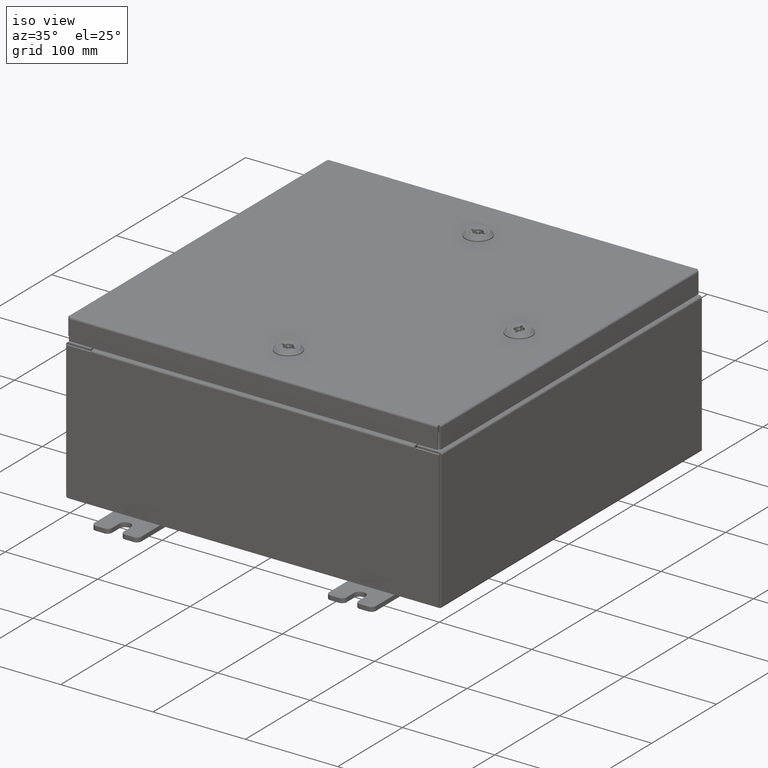
[diagram: clean part render]
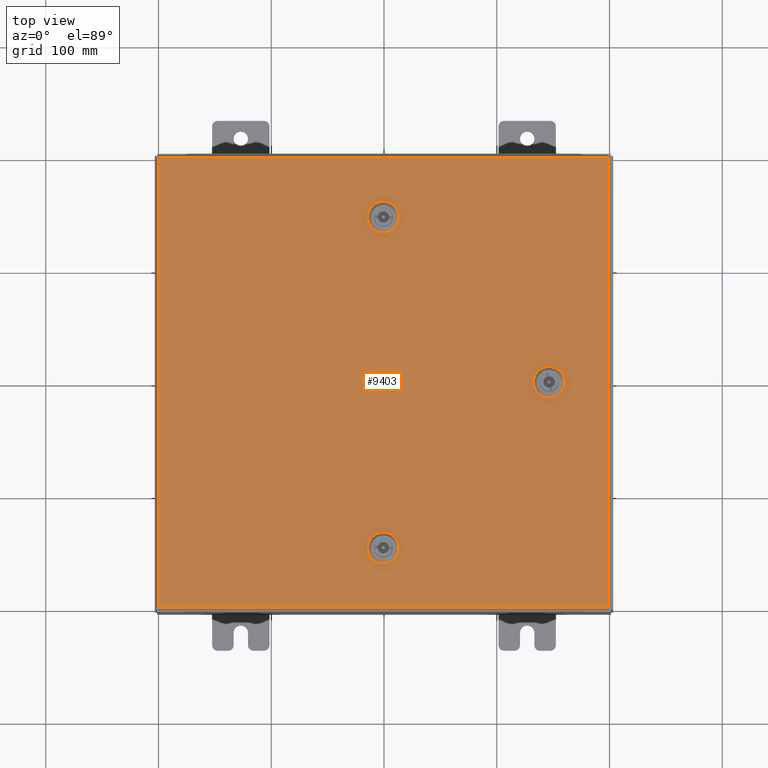
[diagram: tour spotlight — one face highlighted and labeled with its STEP entity id]
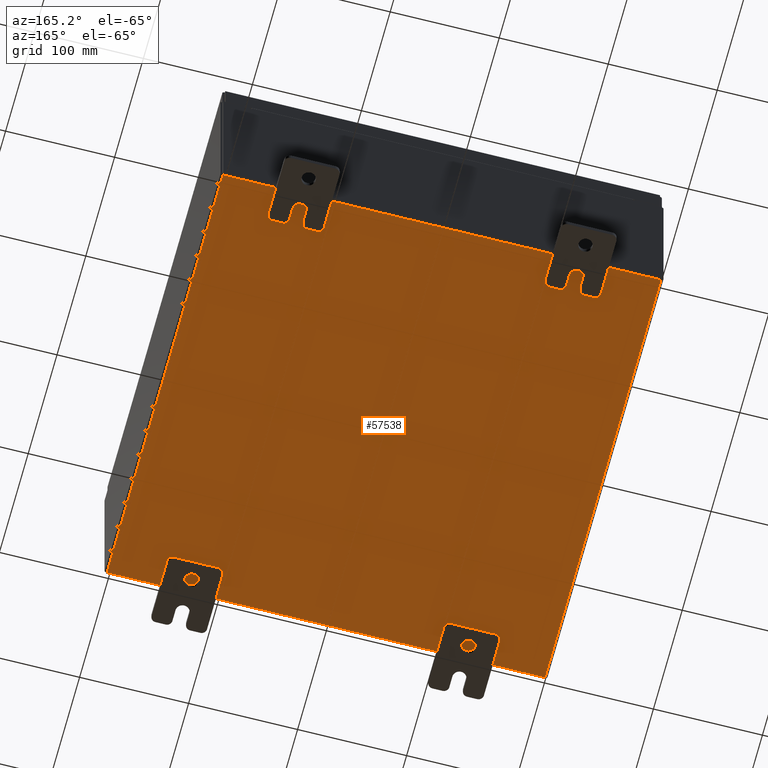
[diagram: tour spotlight — one face highlighted and labeled with its STEP entity id]
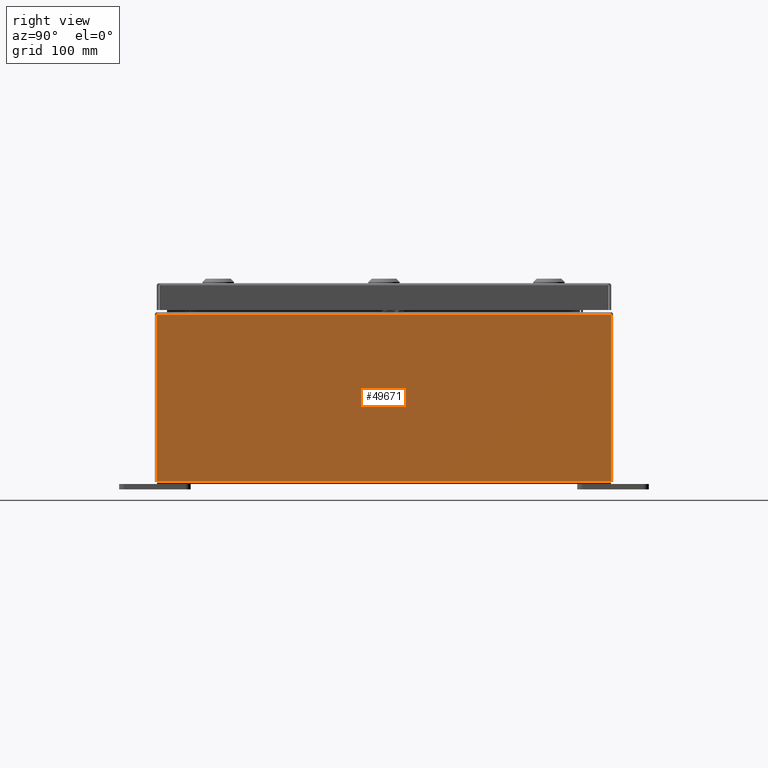
[diagram: tour spotlight — one face highlighted and labeled with its STEP entity id]
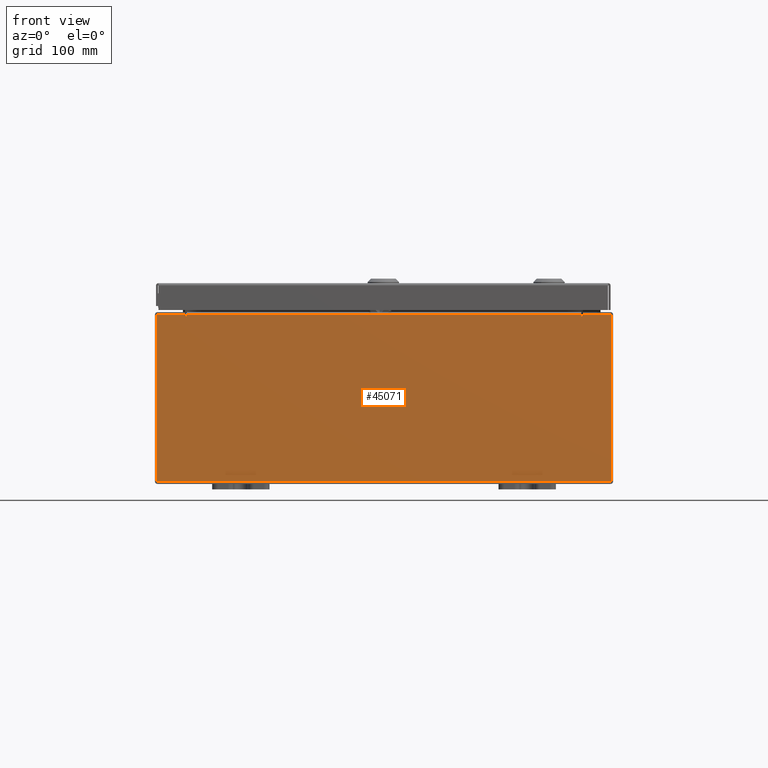
[diagram: tour spotlight — one face highlighted and labeled with its STEP entity id]
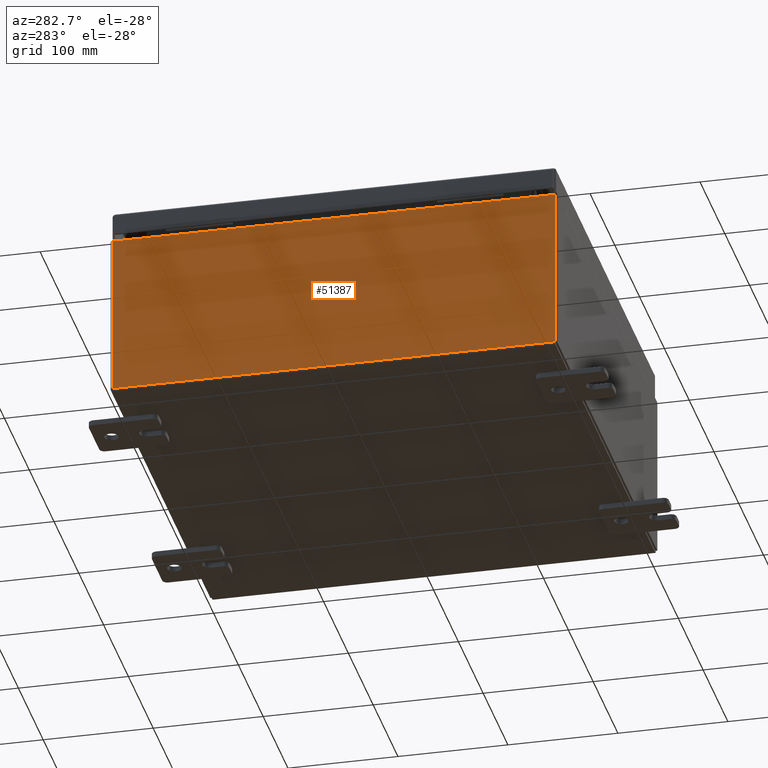
[diagram: tour spotlight — one face highlighted and labeled with its STEP entity id]
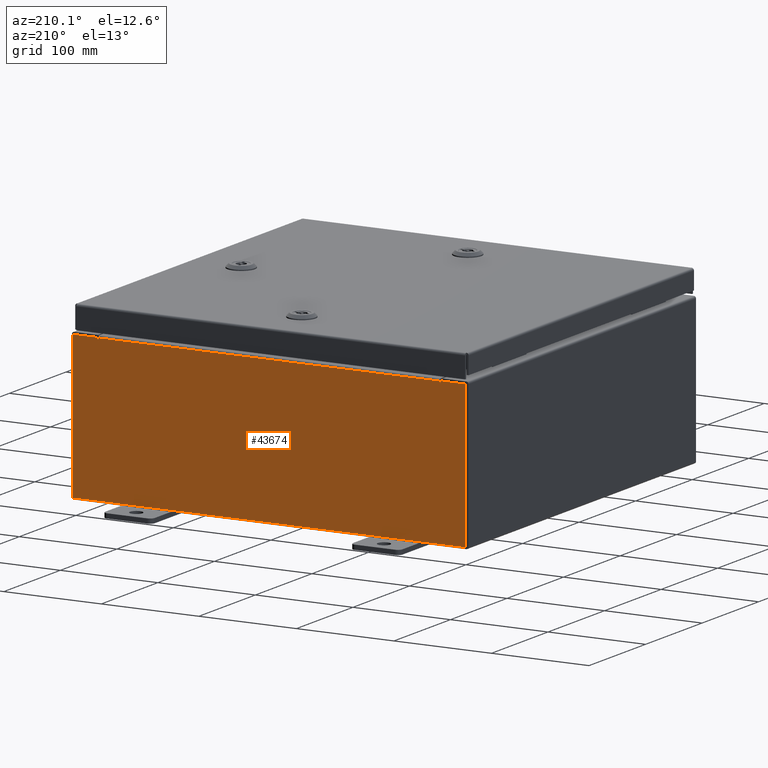
[diagram: tour spotlight — one face highlighted and labeled with its STEP entity id]
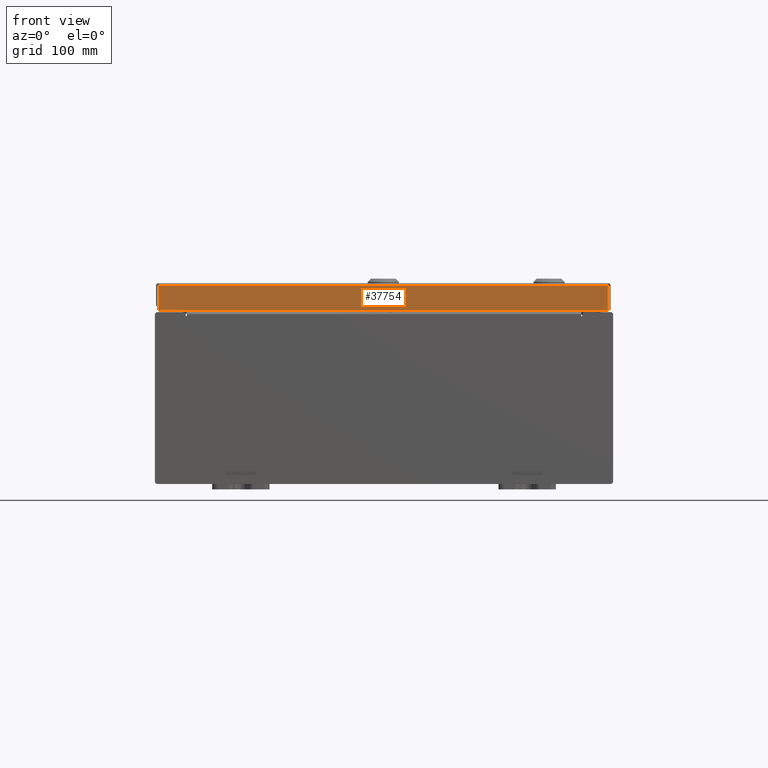
[diagram: tour spotlight — one face highlighted and labeled with its STEP entity id]
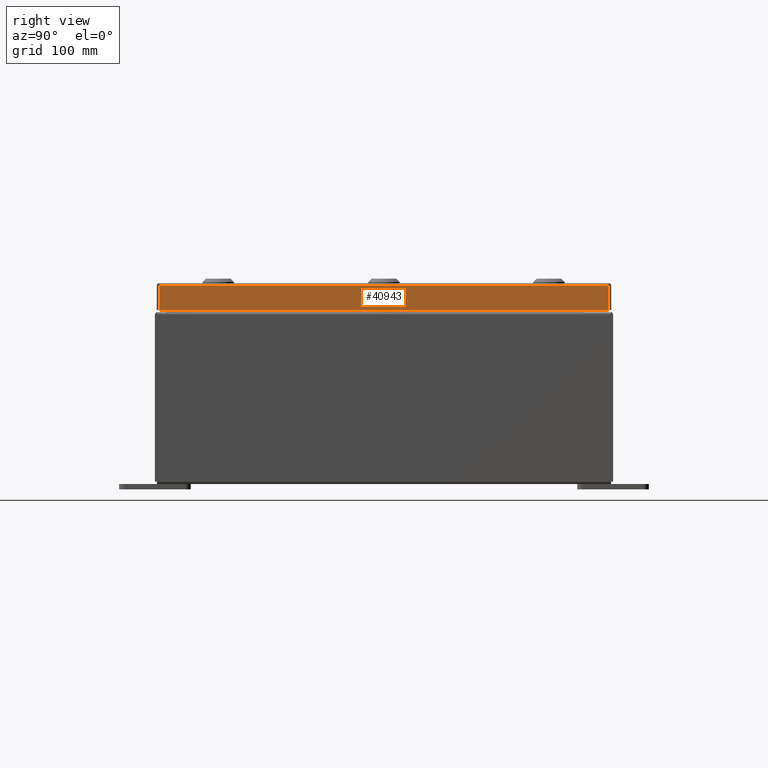
[diagram: tour spotlight — one face highlighted and labeled with its STEP entity id]
A machine part: a face-by-face anatomy tour. The part has 2966 B-rep faces; the first image is the clean iso view, then the 8 largest visible faces are spotlighted one at a time (largest first), each with its STEP entity span.

Face 1 — top view, entity #9403. In plain terms, the highlighted planar face has unit normal (0, 0, -1).
Definition (entity closure, byte-faithful):
#13 = PLANE ( 'NONE',  #53293 ) ;
#670 = VERTEX_POINT ( 'NONE', #39921 ) ;
#1526 = EDGE_CURVE ( 'NONE', #19190, #11620, #39470, .T. ) ;
#1746 = DIRECTION ( 'NONE',  ( -8.218046007208852600E-015, 1.000000000000000000, -0.0000000000000000000 ) ) ;
#2340 = CIRCLE ( 'NONE', #55574, 0.4424999999999972800 ) ;
#2867 = VERTEX_POINT ( 'NONE', #29005 ) ;
#3097 = EDGE_CURVE ( 'NONE', #12695, #33888, #25936, .T. ) ;
#3150 = VERTEX_POINT ( 'NONE', #25585 ) ;
#3383 = DIRECTION ( 'NONE',  ( 0.0000000000000000000, 1.000000000000000000, 6.982962677686269100E-015 ) ) ;
#3447 = DIRECTION ( 'NONE',  ( -0.0000000000000000000, -6.982962677686266700E-015, 1.000000000000000000 ) ) ;
#3516 = CARTESIAN_POINT ( 'NONE',  ( 1.529834876451987200E-014, -5.787799999999992700, -4.962582086151294400E-014 ) ) ;
#4177 = CARTESIAN_POINT ( 'NONE',  ( 5.392800000000015400, 0.1994523752679058200, 0.0000000000000000000 ) ) ;
#4394 = LINE ( 'NONE', #47202, #15733 ) ;
#4796 = DIRECTION ( 'NONE',  ( 0.0000000000000000000, 0.0000000000000000000, 1.000000000000000000 ) ) ;
#5686 = EDGE_CURVE ( 'NONE', #11620, #17388, #2340, .T. ) ;
#5707 = DIRECTION ( 'NONE',  ( 1.000000000000000000, 0.0000000000000000000, 0.0000000000000000000 ) ) ;
#5827 = DIRECTION ( 'NONE',  ( -1.000000000000000000, 2.739348669069617500E-015, 1.946424297521515400E-029 ) ) ;
#6327 = CARTESIAN_POINT ( 'NONE',  ( 0.1994523752678995500, 5.392799999999995800, 0.0000000000000000000 ) ) ;
#7178 = VERTEX_POINT ( 'NONE', #30313 ) ;
#7749 = CIRCLE ( 'NONE', #36434, 0.4424999999999972800 ) ;
#8203 = CARTESIAN_POINT ( 'NONE',  ( 1.529834876451987200E-014, -5.787799999999992700, -4.962582086151294400E-014 ) ) ;
#8351 = CARTESIAN_POINT ( 'NONE',  ( -7.849800000000000100, -7.849800000000000100, -2.219626494852214000E-016 ) ) ;
#8450 = CARTESIAN_POINT ( 'NONE',  ( 5.787800000000007800, 1.529834876451990400E-014, 0.0000000000000000000 ) ) ;
#8616 = ORIENTED_EDGE ( 'NONE', *, *, #1526, .F. ) ;
#8728 = VECTOR ( 'NONE', #44175, 39.37007874015748100 ) ;
#8744 = ORIENTED_EDGE ( 'NONE', *, *, #24923, .F. ) ;
#9040 = ORIENTED_EDGE ( 'NONE', *, *, #3097, .F. ) ;
#9403 = ADVANCED_FACE ( 'NONE', ( #60220, #36150, #23289, #61766 ), #13, .F. ) ;
#10308 = CARTESIAN_POINT ( 'NONE',  ( 5.392800000000015400, 0.1994523752679053800, 0.0000000000000000000 ) ) ;
#10561 = CARTESIAN_POINT ( 'NONE',  ( 5.392800000000011800, -0.1994523752678671000, 0.0000000000000000000 ) ) ;
#11105 = DIRECTION ( 'NONE',  ( 1.000000000000000000, 1.369674334534795400E-014, 9.732121487607481600E-029 ) ) ;
#11108 = VERTEX_POINT ( 'NONE', #61113 ) ;
#11159 = CARTESIAN_POINT ( 'NONE',  ( 6.182800000000007400, -0.1994523752678676000, 0.0000000000000000000 ) ) ;
#11385 = ORIENTED_EDGE ( 'NONE', *, *, #5686, .F. ) ;
#11543 = EDGE_CURVE ( 'NONE', #11108, #7178, #15584, .T. ) ;
#11620 = VERTEX_POINT ( 'NONE', #27463 ) ;
#12683 = CARTESIAN_POINT ( 'NONE',  ( 7.849800000000000100, -7.849800000000000100, -2.219626494852214000E-016 ) ) ;
#12695 = VERTEX_POINT ( 'NONE', #17640 ) ;
#12997 = EDGE_CURVE ( 'NONE', #20886, #670, #33648, .T. ) ;
#13073 = DIRECTION ( 'NONE',  ( 0.0000000000000000000, 1.000000000000000000, 6.982962677686269100E-015 ) ) ;
#13339 = DIRECTION ( 'NONE',  ( 1.000000000000000000, 0.0000000000000000000, 0.0000000000000000000 ) ) ;
#13493 = DIRECTION ( 'NONE',  ( -0.0000000000000000000, -6.982962677686266700E-015, 1.000000000000000000 ) ) ;
#13686 = LINE ( 'NONE', #49420, #37929 ) ;
#14999 = DIRECTION ( 'NONE',  ( 0.0000000000000000000, 0.0000000000000000000, 1.000000000000000000 ) ) ;
#15104 = CARTESIAN_POINT ( 'NONE',  ( -7.849800000000000100, -7.849800000000000100, -2.219626494852214000E-016 ) ) ;
#15192 = EDGE_CURVE ( 'NONE', #2867, #54004, #32846, .T. ) ;
#15584 = CIRCLE ( 'NONE', #23421, 0.4424999999999979500 ) ;
#15733 = VECTOR ( 'NONE', #42380, 39.37007874015748100 ) ;
#17388 = VERTEX_POINT ( 'NONE', #4177 ) ;
#17640 = CARTESIAN_POINT ( 'NONE',  ( -0.1994523752678689600, -5.392799999999994900, -4.686755060382689000E-014 ) ) ;
#18426 = CARTESIAN_POINT ( 'NONE',  ( 5.787800000000007800, 1.529834876451990400E-014, 0.0000000000000000000 ) ) ;
#18465 = ORIENTED_EDGE ( 'NONE', *, *, #40075, .F. ) ;
#18785 = EDGE_CURVE ( 'NONE', #59664, #19190, #28586, .T. ) ;
#19190 = VERTEX_POINT ( 'NONE', #11159 ) ;
#20000 = ORIENTED_EDGE ( 'NONE', *, *, #26848, .F. ) ;
#20326 = EDGE_CURVE ( 'NONE', #54004, #26465, #4394, .T. ) ;
#20658 = EDGE_LOOP ( 'NONE', ( #34731, #28308, #8744, #18465, #40574 ) ) ;
#20886 = VERTEX_POINT ( 'NONE', #57047 ) ;
#21521 = DIRECTION ( 'NONE',  ( -1.000000000000000000, -0.0000000000000000000, -0.0000000000000000000 ) ) ;
#21553 = VERTEX_POINT ( 'NONE', #38354 ) ;
#22474 = ORIENTED_EDGE ( 'NONE', *, *, #18785, .F. ) ;
#22979 = AXIS2_PLACEMENT_3D ( 'NONE', #24414, #58122, #29288 ) ;
#23289 = FACE_BOUND ( 'NONE', #20658, .T. ) ;
#23421 = AXIS2_PLACEMENT_3D ( 'NONE', #28224, #28146, #28102 ) ;
#23468 = ORIENTED_EDGE ( 'NONE', *, *, #48523, .T. ) ;
#23550 = CARTESIAN_POINT ( 'NONE',  ( 0.1994523752679067700, 6.182799999999984300, 0.0000000000000000000 ) ) ;
#24309 = EDGE_LOOP ( 'NONE', ( #36406, #9040, #20000, #59791, #61858 ) ) ;
#24414 = CARTESIAN_POINT ( 'NONE',  ( 1.529834876451987200E-014, 5.787799999999992700, 0.0000000000000000000 ) ) ;
#24564 = DIRECTION ( 'NONE',  ( 0.0000000000000000000, 0.0000000000000000000, -1.000000000000000000 ) ) ;
#24923 = EDGE_CURVE ( 'NONE', #46312, #11108, #26786, .T. ) ;
#25585 = CARTESIAN_POINT ( 'NONE',  ( 0.1994523752678995500, 5.392799999999995800, 0.0000000000000000000 ) ) ;
#25936 = CIRCLE ( 'NONE', #46662, 0.4424999999999983400 ) ;
#26465 = VERTEX_POINT ( 'NONE', #8351 ) ;
#26786 = LINE ( 'NONE', #23550, #52473 ) ;
#26848 = EDGE_CURVE ( 'NONE', #39194, #12695, #55307, .T. ) ;
#27463 = CARTESIAN_POINT ( 'NONE',  ( 6.182800000000003000, 0.1994523752679009100, 0.0000000000000000000 ) ) ;
#27550 = CIRCLE ( 'NONE', #22979, 0.4424999999999973400 ) ;
#27847 = CARTESIAN_POINT ( 'NONE',  ( -0.1994523752678657400, -6.182799999999990500, 0.0000000000000000000 ) ) ;
#28102 = DIRECTION ( 'NONE',  ( 1.000000000000000000, 0.0000000000000000000, 0.0000000000000000000 ) ) ;
#28146 = DIRECTION ( 'NONE',  ( 0.0000000000000000000, 0.0000000000000000000, 1.000000000000000000 ) ) ;
#28224 = CARTESIAN_POINT ( 'NONE',  ( 1.529834876451987200E-014, 5.787799999999992700, 0.0000000000000000000 ) ) ;
#28308 = ORIENTED_EDGE ( 'NONE', *, *, #11543, .F. ) ;
#28586 = CIRCLE ( 'NONE', #38256, 0.4424999999999983400 ) ;
#29005 = CARTESIAN_POINT ( 'NONE',  ( 7.849800000000000100, 7.849800000000000100, -2.219626494852214000E-016 ) ) ;
#29288 = DIRECTION ( 'NONE',  ( 1.000000000000000000, 0.0000000000000000000, 0.0000000000000000000 ) ) ;
#29358 = CIRCLE ( 'NONE', #56335, 0.4424999999999973400 ) ;
#30313 = CARTESIAN_POINT ( 'NONE',  ( -0.1994523752678689600, 5.392799999999994900, 0.0000000000000000000 ) ) ;
#30698 = EDGE_CURVE ( 'NONE', #26465, #62629, #58448, .T. ) ;
#32798 = EDGE_CURVE ( 'NONE', #3150, #21553, #27550, .T. ) ;
#32846 = LINE ( 'NONE', #55272, #55476 ) ;
#33648 = CIRCLE ( 'NONE', #41318, 0.4424999999999972800 ) ;
#33720 = CARTESIAN_POINT ( 'NONE',  ( 1.529834876451987200E-014, 5.787799999999992700, 0.0000000000000000000 ) ) ;
#33888 = VERTEX_POINT ( 'NONE', #27847 ) ;
#34561 = EDGE_CURVE ( 'NONE', #670, #39194, #7749, .T. ) ;
#34731 = ORIENTED_EDGE ( 'NONE', *, *, #39392, .F. ) ;
#34847 = VECTOR ( 'NONE', #37431, 39.37007874015748100 ) ;
#35102 = EDGE_LOOP ( 'NONE', ( #57499, #23468, #61137, #42707 ) ) ;
#35276 = DIRECTION ( 'NONE',  ( 1.000000000000000000, 2.739348669069617500E-015, -0.0000000000000000000 ) ) ;
#36150 = FACE_BOUND ( 'NONE', #24309, .T. ) ;
#36232 = EDGE_CURVE ( 'NONE', #33888, #20886, #13686, .T. ) ;
#36367 = LINE ( 'NONE', #51779, #34847 ) ;
#36406 = ORIENTED_EDGE ( 'NONE', *, *, #36232, .F. ) ;
#36434 = AXIS2_PLACEMENT_3D ( 'NONE', #8203, #42084, #13073 ) ;
#37431 = DIRECTION ( 'NONE',  ( 0.0000000000000000000, 1.000000000000000000, 0.0000000000000000000 ) ) ;
#37929 = VECTOR ( 'NONE', #11105, 39.37007874015748100 ) ;
#38256 = AXIS2_PLACEMENT_3D ( 'NONE', #8450, #42338, #13339 ) ;
#38354 = CARTESIAN_POINT ( 'NONE',  ( 0.4425000000000126100, 5.787799999999992700, 0.0000000000000000000 ) ) ;
#38631 = DIRECTION ( 'NONE',  ( 1.000000000000000000, 0.0000000000000000000, 0.0000000000000000000 ) ) ;
#39194 = VERTEX_POINT ( 'NONE', #48419 ) ;
#39392 = EDGE_CURVE ( 'NONE', #7178, #3150, #49096, .T. ) ;
#39470 = LINE ( 'NONE', #58495, #62036 ) ;
#39797 = EDGE_LOOP ( 'NONE', ( #8616, #22474, #42990, #11385 ) ) ;
#39921 = CARTESIAN_POINT ( 'NONE',  ( 0.4425000000000126100, -5.787799999999992700, -4.962582086151294400E-014 ) ) ;
#40075 = EDGE_CURVE ( 'NONE', #21553, #46312, #29358, .T. ) ;
#40574 = ORIENTED_EDGE ( 'NONE', *, *, #32798, .F. ) ;
#41318 = AXIS2_PLACEMENT_3D ( 'NONE', #3516, #3447, #3383 ) ;
#42084 = DIRECTION ( 'NONE',  ( -0.0000000000000000000, -6.982962677686266700E-015, 1.000000000000000000 ) ) ;
#42338 = DIRECTION ( 'NONE',  ( 0.0000000000000000000, 0.0000000000000000000, 1.000000000000000000 ) ) ;
#42380 = DIRECTION ( 'NONE',  ( 0.0000000000000000000, -1.000000000000000000, 0.0000000000000000000 ) ) ;
#42578 = VECTOR ( 'NONE', #5827, 39.37007874015748100 ) ;
#42707 = ORIENTED_EDGE ( 'NONE', *, *, #20326, .T. ) ;
#42990 = ORIENTED_EDGE ( 'NONE', *, *, #54593, .F. ) ;
#44087 = DIRECTION ( 'NONE',  ( 1.000000000000000000, -0.0000000000000000000, -0.0000000000000000000 ) ) ;
#44175 = DIRECTION ( 'NONE',  ( -1.095739467627836100E-014, -1.000000000000000000, 0.0000000000000000000 ) ) ;
#44223 = VECTOR ( 'NONE', #44087, 39.37007874015748100 ) ;
#46312 = VERTEX_POINT ( 'NONE', #62099 ) ;
#46662 = AXIS2_PLACEMENT_3D ( 'NONE', #60558, #13493, #49979 ) ;
#47202 = CARTESIAN_POINT ( 'NONE',  ( -7.849800000000000100, 7.849800000000000100, -2.048885995248197400E-016 ) ) ;
#48419 = CARTESIAN_POINT ( 'NONE',  ( 0.1994523752678995500, -5.392799999999995800, -4.686755060382689600E-014 ) ) ;
#48523 = EDGE_CURVE ( 'NONE', #62629, #2867, #36367, .T. ) ;
#49096 = LINE ( 'NONE', #6327, #60286 ) ;
#49420 = CARTESIAN_POINT ( 'NONE',  ( 0.1994523752679067700, -6.182799999999984300, -5.238409111919896100E-014 ) ) ;
#49979 = DIRECTION ( 'NONE',  ( 0.0000000000000000000, 1.000000000000000000, 6.982962677686252500E-015 ) ) ;
#50692 = DIRECTION ( 'NONE',  ( -1.000000000000000000, 0.0000000000000000000, -0.0000000000000000000 ) ) ;
#50838 = CARTESIAN_POINT ( 'NONE',  ( 0.0000000000000000000, 0.0000000000000000000, 0.0000000000000000000 ) ) ;
#51779 = CARTESIAN_POINT ( 'NONE',  ( 7.849800000000000100, -7.849800000000000100, -2.219626494852214000E-016 ) ) ;
#52473 = VECTOR ( 'NONE', #57265, 39.37007874015748100 ) ;
#53293 = AXIS2_PLACEMENT_3D ( 'NONE', #50838, #24564, #50692 ) ;
#53768 = CARTESIAN_POINT ( 'NONE',  ( -7.849800000000000100, 7.849800000000000100, -2.048885995248197400E-016 ) ) ;
#53940 = CARTESIAN_POINT ( 'NONE',  ( 0.1994523752678995500, -5.392799999999995800, -4.686755060382689600E-014 ) ) ;
#54004 = VERTEX_POINT ( 'NONE', #53768 ) ;
#54593 = EDGE_CURVE ( 'NONE', #17388, #59664, #57062, .T. ) ;
#55272 = CARTESIAN_POINT ( 'NONE',  ( 7.849800000000000100, 7.849800000000000100, -2.219626494852214000E-016 ) ) ;
#55307 = LINE ( 'NONE', #53940, #42578 ) ;
#55476 = VECTOR ( 'NONE', #21521, 39.37007874015748100 ) ;
#55574 = AXIS2_PLACEMENT_3D ( 'NONE', #18426, #14999, #5707 ) ;
#56335 = AXIS2_PLACEMENT_3D ( 'NONE', #33720, #4796, #38631 ) ;
#57047 = CARTESIAN_POINT ( 'NONE',  ( 0.1994523752679070700, -6.182799999999984300, -5.238409111919896100E-014 ) ) ;
#57062 = LINE ( 'NONE', #10308, #8728 ) ;
#57265 = DIRECTION ( 'NONE',  ( -1.000000000000000000, 1.369674334534795400E-014, 0.0000000000000000000 ) ) ;
#57499 = ORIENTED_EDGE ( 'NONE', *, *, #30698, .T. ) ;
#58122 = DIRECTION ( 'NONE',  ( 0.0000000000000000000, 0.0000000000000000000, 1.000000000000000000 ) ) ;
#58448 = LINE ( 'NONE', #15104, #44223 ) ;
#58495 = CARTESIAN_POINT ( 'NONE',  ( 6.182800000000003000, 0.1994523752679009100, 0.0000000000000000000 ) ) ;
#59664 = VERTEX_POINT ( 'NONE', #10561 ) ;
#59791 = ORIENTED_EDGE ( 'NONE', *, *, #34561, .F. ) ;
#60220 = FACE_BOUND ( 'NONE', #39797, .T. ) ;
#60286 = VECTOR ( 'NONE', #35276, 39.37007874015748100 ) ;
#60558 = CARTESIAN_POINT ( 'NONE',  ( 1.529834876451987200E-014, -5.787799999999992700, -4.962582086151294400E-014 ) ) ;
#61113 = CARTESIAN_POINT ( 'NONE',  ( -0.1994523752678657400, 6.182799999999989600, 0.0000000000000000000 ) ) ;
#61137 = ORIENTED_EDGE ( 'NONE', *, *, #15192, .T. ) ;
#61766 = FACE_OUTER_BOUND ( 'NONE', #35102, .T. ) ;
#61858 = ORIENTED_EDGE ( 'NONE', *, *, #12997, .F. ) ;
#62036 = VECTOR ( 'NONE', #1746, 39.37007874015748100 ) ;
#62099 = CARTESIAN_POINT ( 'NONE',  ( 0.1994523752679068500, 6.182799999999984300, 0.0000000000000000000 ) ) ;
#62629 = VERTEX_POINT ( 'NONE', #12683 ) ;

Face 2 — auxiliary view, entity #57538. In plain terms, the highlighted planar face has unit normal (0, 0, -1).
Definition (entity closure, byte-faithful):
#505 = CARTESIAN_POINT ( 'NONE',  ( -7.912300000000001000, -7.925300000000000900, -0.07469999999999994700 ) ) ;
#595 = CARTESIAN_POINT ( 'NONE',  ( 7.912299999999998300, -7.925300000000000900, -0.07470000000000000300 ) ) ;
#3045 = CARTESIAN_POINT ( 'NONE',  ( 0.0000000000000000000, 0.0000000000000000000, -0.07470000000000000300 ) ) ;
#3635 = VECTOR ( 'NONE', #39017, 39.37007874015748100 ) ;
#6584 = ORIENTED_EDGE ( 'NONE', *, *, #17286, .F. ) ;
#7062 = FACE_OUTER_BOUND ( 'NONE', #38694, .T. ) ;
#10462 = LINE ( 'NONE', #27662, #36222 ) ;
#15170 = VECTOR ( 'NONE', #17330, 39.37007874015748100 ) ;
#17286 = EDGE_CURVE ( 'NONE', #41288, #48933, #10462, .T. ) ;
#17330 = DIRECTION ( 'NONE',  ( -1.000000000000000000, -0.0000000000000000000, -0.0000000000000000000 ) ) ;
#18240 = EDGE_CURVE ( 'NONE', #41288, #26031, #29361, .T. ) ;
#21830 = ORIENTED_EDGE ( 'NONE', *, *, #18240, .T. ) ;
#22824 = CARTESIAN_POINT ( 'NONE',  ( 7.912299999999998300, 7.925300000000000000, -0.07469999999999994700 ) ) ;
#26031 = VERTEX_POINT ( 'NONE', #29984 ) ;
#26989 = ORIENTED_EDGE ( 'NONE', *, *, #40528, .T. ) ;
#27387 = DIRECTION ( 'NONE',  ( 0.0000000000000000000, 0.0000000000000000000, -1.000000000000000000 ) ) ;
#27662 = CARTESIAN_POINT ( 'NONE',  ( -8.000000000000001800, -7.925300000000000900, -0.07470000000000000300 ) ) ;
#29361 = LINE ( 'NONE', #505, #3635 ) ;
#29984 = CARTESIAN_POINT ( 'NONE',  ( -7.912300000000001000, 7.925299999999998200, -0.07470000000000000300 ) ) ;
#36222 = VECTOR ( 'NONE', #37165, 39.37007874015748100 ) ;
#36889 = DIRECTION ( 'NONE',  ( -0.0000000000000000000, -1.000000000000000000, -0.0000000000000000000 ) ) ;
#37165 = DIRECTION ( 'NONE',  ( 1.000000000000000000, 0.0000000000000000000, 0.0000000000000000000 ) ) ;
#38694 = EDGE_LOOP ( 'NONE', ( #6584, #21830, #43738, #26989 ) ) ;
#39017 = DIRECTION ( 'NONE',  ( -0.0000000000000000000, 1.000000000000000000, -0.0000000000000000000 ) ) ;
#40528 = EDGE_CURVE ( 'NONE', #41164, #48933, #57215, .T. ) ;
#41164 = VERTEX_POINT ( 'NONE', #22824 ) ;
#41288 = VERTEX_POINT ( 'NONE', #47553 ) ;
#41755 = CARTESIAN_POINT ( 'NONE',  ( 7.912299999999998300, 7.925300000000000000, -0.07469999999999994700 ) ) ;
#42979 = VECTOR ( 'NONE', #36889, 39.37007874015748100 ) ;
#43738 = ORIENTED_EDGE ( 'NONE', *, *, #46865, .F. ) ;
#46267 = CARTESIAN_POINT ( 'NONE',  ( -8.000000000000001800, 7.925299999999998200, -0.07470000000000000300 ) ) ;
#46865 = EDGE_CURVE ( 'NONE', #41164, #26031, #53693, .T. ) ;
#47553 = CARTESIAN_POINT ( 'NONE',  ( -7.912300000000001000, -7.925300000000000900, -0.07469999999999994700 ) ) ;
#48933 = VERTEX_POINT ( 'NONE', #595 ) ;
#53693 = LINE ( 'NONE', #46267, #15170 ) ;
#56250 = PLANE ( 'NONE',  #61031 ) ;
#57215 = LINE ( 'NONE', #41755, #42979 ) ;
#57538 = ADVANCED_FACE ( 'NONE', ( #7062 ), #56250, .T. ) ;
#61031 = AXIS2_PLACEMENT_3D ( 'NONE', #3045, #27387, #61097 ) ;
#61097 = DIRECTION ( 'NONE',  ( -1.000000000000000000, 0.0000000000000000000, -0.0000000000000000000 ) ) ;

Face 3 — right view, entity #49671. In plain terms, the highlighted planar face has unit normal (-1, 0, 0).
Definition (entity closure, byte-faithful):
#1372 = PLANE ( 'NONE',  #50770 ) ;
#2805 = LINE ( 'NONE', #54440, #28541 ) ;
#7055 = CARTESIAN_POINT ( 'NONE',  ( 7.999999999999999100, 7.925299999999998200, -2.829253492156558900E-014 ) ) ;
#7204 = LINE ( 'NONE', #14847, #31407 ) ;
#7548 = LINE ( 'NONE', #7055, #57359 ) ;
#8190 = ORIENTED_EDGE ( 'NONE', *, *, #31233, .T. ) ;
#9028 = FACE_OUTER_BOUND ( 'NONE', #30904, .T. ) ;
#11058 = DIRECTION ( 'NONE',  ( -1.000000000000000000, 0.0000000000000000000, 3.503965158194250900E-015 ) ) ;
#12418 = CARTESIAN_POINT ( 'NONE',  ( 7.999999999999999100, -7.925300000000000000, 0.01299999999999984500 ) ) ;
#14847 = CARTESIAN_POINT ( 'NONE',  ( 8.000000000000019500, 7.925300000000000000, 5.837600000000001000 ) ) ;
#22075 = VERTEX_POINT ( 'NONE', #23037 ) ;
#22490 = DIRECTION ( 'NONE',  ( -0.0000000000000000000, -1.000000000000000000, -0.0000000000000000000 ) ) ;
#23037 = CARTESIAN_POINT ( 'NONE',  ( 8.000000000000019500, -7.925300000000000000, 5.837600000000001000 ) ) ;
#24847 = EDGE_CURVE ( 'NONE', #61694, #57492, #53935, .T. ) ;
#28541 = VECTOR ( 'NONE', #30426, 39.37007874015748100 ) ;
#30426 = DIRECTION ( 'NONE',  ( -3.503965158194251300E-015, -1.844192188523290500E-016, -1.000000000000000000 ) ) ;
#30904 = EDGE_LOOP ( 'NONE', ( #8190, #47479, #37519, #55735 ) ) ;
#31233 = EDGE_CURVE ( 'NONE', #55698, #22075, #7204, .T. ) ;
#31407 = VECTOR ( 'NONE', #48698, 39.37007874015748100 ) ;
#37519 = ORIENTED_EDGE ( 'NONE', *, *, #24847, .F. ) ;
#40088 = CARTESIAN_POINT ( 'NONE',  ( 7.999999999999999100, 0.0000000000000000000, -2.829253492156558900E-014 ) ) ;
#41109 = DIRECTION ( 'NONE',  ( 3.503965158194251300E-015, 0.0000000000000000000, 1.000000000000000000 ) ) ;
#43569 = CARTESIAN_POINT ( 'NONE',  ( 8.000000000000019500, 7.925300000000000000, 5.837600000000001000 ) ) ;
#44918 = DIRECTION ( 'NONE',  ( 3.503965158194250900E-015, 0.0000000000000000000, 1.000000000000000000 ) ) ;
#47479 = ORIENTED_EDGE ( 'NONE', *, *, #52945, .T. ) ;
#48698 = DIRECTION ( 'NONE',  ( -0.0000000000000000000, -1.000000000000000000, -0.0000000000000000000 ) ) ;
#49671 = ADVANCED_FACE ( 'NONE', ( #9028 ), #1372, .F. ) ;
#49791 = EDGE_CURVE ( 'NONE', #61694, #55698, #7548, .T. ) ;
#50770 = AXIS2_PLACEMENT_3D ( 'NONE', #40088, #11058, #44918 ) ;
#51123 = CARTESIAN_POINT ( 'NONE',  ( 7.999999999999999100, 7.925300000000000000, 0.01299999999999984700 ) ) ;
#51469 = CARTESIAN_POINT ( 'NONE',  ( 7.999999999999999100, -7.925300000000000000, 0.01299999999999984700 ) ) ;
#52945 = EDGE_CURVE ( 'NONE', #22075, #57492, #2805, .T. ) ;
#53935 = LINE ( 'NONE', #51469, #55428 ) ;
#54440 = CARTESIAN_POINT ( 'NONE',  ( 7.999999999999999100, -7.925300000000000900, -2.683095728639522500E-014 ) ) ;
#55428 = VECTOR ( 'NONE', #22490, 39.37007874015748100 ) ;
#55698 = VERTEX_POINT ( 'NONE', #43569 ) ;
#55735 = ORIENTED_EDGE ( 'NONE', *, *, #49791, .T. ) ;
#57359 = VECTOR ( 'NONE', #41109, 39.37007874015748100 ) ;
#57492 = VERTEX_POINT ( 'NONE', #12418 ) ;
#61694 = VERTEX_POINT ( 'NONE', #51123 ) ;

Face 4 — front view, entity #45071. In plain terms, the highlighted planar face has unit normal (-0, 1, -0).
Definition (entity closure, byte-faithful):
#58 = VERTEX_POINT ( 'NONE', #56103 ) ;
#68 = EDGE_CURVE ( 'NONE', #62266, #43468, #48634, .T. ) ;
#2609 = DIRECTION ( 'NONE',  ( 0.0000000000000000000, 0.0000000000000000000, -1.000000000000000000 ) ) ;
#3137 = ORIENTED_EDGE ( 'NONE', *, *, #41061, .T. ) ;
#5115 = LINE ( 'NONE', #31285, #16436 ) ;
#5232 = EDGE_CURVE ( 'NONE', #58, #10520, #37181, .T. ) ;
#5796 = VECTOR ( 'NONE', #42517, 39.37007874015748100 ) ;
#7315 = CARTESIAN_POINT ( 'NONE',  ( 0.0000000000000000000, 0.0000000000000000000, 0.0000000000000000000 ) ) ;
#7892 = DIRECTION ( 'NONE',  ( 1.000000000000000000, 0.0000000000000000000, 0.0000000000000000000 ) ) ;
#8341 = VERTEX_POINT ( 'NONE', #15123 ) ;
#8865 = DIRECTION ( 'NONE',  ( -0.0000000000000000000, 1.000000000000000000, -0.0000000000000000000 ) ) ;
#9347 = CARTESIAN_POINT ( 'NONE',  ( 6.887200000000000000, 0.0000000000000000000, 0.0000000000000000000 ) ) ;
#9728 = CARTESIAN_POINT ( 'NONE',  ( -6.887199999999998200, -0.0000000000000000000, 2.874950000000000600 ) ) ;
#10520 = VERTEX_POINT ( 'NONE', #43622 ) ;
#11933 = DIRECTION ( 'NONE',  ( -0.0000000000000000000, -0.0000000000000000000, 1.000000000000000000 ) ) ;
#12216 = CARTESIAN_POINT ( 'NONE',  ( 7.925300000000000000, 0.0000000000000000000, 2.925300000000000500 ) ) ;
#12354 = DIRECTION ( 'NONE',  ( 0.0000000000000000000, -0.0000000000000000000, -1.000000000000000000 ) ) ;
#12873 = CARTESIAN_POINT ( 'NONE',  ( -6.924549999999997300, 0.0000000000000000000, 2.874950000000000600 ) ) ;
#12956 = VECTOR ( 'NONE', #14464, 39.37007874015748100 ) ;
#13293 = VERTEX_POINT ( 'NONE', #31825 ) ;
#13511 = EDGE_CURVE ( 'NONE', #8341, #18091, #50274, .T. ) ;
#13842 = CARTESIAN_POINT ( 'NONE',  ( 6.924549999999875600, -0.0000000000000000000, -3.005651324651831700E-013 ) ) ;
#14464 = DIRECTION ( 'NONE',  ( -4.340572780400004900E-014, 0.0000000000000000000, -1.000000000000000000 ) ) ;
#14600 = CARTESIAN_POINT ( 'NONE',  ( -7.925300000000000000, 0.0000000000000000000, -2.925299999999999600 ) ) ;
#15058 = VECTOR ( 'NONE', #19473, 39.37007874015748100 ) ;
#15123 = CARTESIAN_POINT ( 'NONE',  ( -7.925300000000000000, 0.0000000000000000000, 2.925300000000000500 ) ) ;
#15835 = DIRECTION ( 'NONE',  ( 0.0000000000000000000, 0.0000000000000000000, -1.000000000000000000 ) ) ;
#15915 = CARTESIAN_POINT ( 'NONE',  ( -6.905874999999998200, 0.0000000000000000000, 2.874950000000000600 ) ) ;
#16436 = VECTOR ( 'NONE', #41038, 39.37007874015748100 ) ;
#17053 = ORIENTED_EDGE ( 'NONE', *, *, #25032, .F. ) ;
#17174 = AXIS2_PLACEMENT_3D ( 'NONE', #60427, #31587, #2609 ) ;
#18091 = VERTEX_POINT ( 'NONE', #43260 ) ;
#18997 = CARTESIAN_POINT ( 'NONE',  ( 7.925300000000000000, 0.0000000000000000000, -2.925299999999999600 ) ) ;
#19473 = DIRECTION ( 'NONE',  ( -1.000000000000000000, -0.0000000000000000000, -0.0000000000000000000 ) ) ;
#20146 = EDGE_CURVE ( 'NONE', #30951, #20513, #45137, .T. ) ;
#20337 = VECTOR ( 'NONE', #11933, 39.37007874015748100 ) ;
#20513 = VERTEX_POINT ( 'NONE', #50276 ) ;
#20802 = DIRECTION ( 'NONE',  ( 0.0000000000000000000, 0.0000000000000000000, -1.000000000000000000 ) ) ;
#21341 = VERTEX_POINT ( 'NONE', #31426 ) ;
#21718 = CARTESIAN_POINT ( 'NONE',  ( -7.925300000000000000, 0.0000000000000000000, 2.925300000000000500 ) ) ;
#21817 = AXIS2_PLACEMENT_3D ( 'NONE', #15915, #8865, #15835 ) ;
#22129 = EDGE_CURVE ( 'NONE', #43468, #18091, #45860, .T. ) ;
#23730 = ORIENTED_EDGE ( 'NONE', *, *, #22129, .F. ) ;
#24960 = VECTOR ( 'NONE', #20802, 39.37007874015748100 ) ;
#25032 = EDGE_CURVE ( 'NONE', #13293, #20513, #50982, .T. ) ;
#25594 = ORIENTED_EDGE ( 'NONE', *, *, #20146, .T. ) ;
#26059 = ORIENTED_EDGE ( 'NONE', *, *, #5232, .F. ) ;
#27082 = EDGE_CURVE ( 'NONE', #10520, #13293, #50866, .T. ) ;
#27596 = ORIENTED_EDGE ( 'NONE', *, *, #50493, .T. ) ;
#30236 = EDGE_CURVE ( 'NONE', #30951, #62266, #34799, .T. ) ;
#30951 = VERTEX_POINT ( 'NONE', #60190 ) ;
#31285 = CARTESIAN_POINT ( 'NONE',  ( 7.925300000000000000, 0.0000000000000000000, 2.925300000000000500 ) ) ;
#31408 = PLANE ( 'NONE',  #31614 ) ;
#31426 = CARTESIAN_POINT ( 'NONE',  ( -7.925300000000000000, 0.0000000000000000000, -2.925299999999999600 ) ) ;
#31587 = DIRECTION ( 'NONE',  ( -0.0000000000000000000, 1.000000000000000000, -0.0000000000000000000 ) ) ;
#31614 = AXIS2_PLACEMENT_3D ( 'NONE', #7315, #41372, #12354 ) ;
#31825 = CARTESIAN_POINT ( 'NONE',  ( 6.887199999999998200, 0.0000000000000000000, 2.874950000000000600 ) ) ;
#32702 = ORIENTED_EDGE ( 'NONE', *, *, #30236, .F. ) ;
#33103 = VECTOR ( 'NONE', #7892, 39.37007874015748100 ) ;
#33173 = LINE ( 'NONE', #45790, #20337 ) ;
#34397 = EDGE_LOOP ( 'NONE', ( #23730, #49429, #32702, #25594, #17053, #53958, #26059, #51352, #3137, #27596, #57723, #59014 ) ) ;
#34799 = LINE ( 'NONE', #49764, #24960 ) ;
#35907 = VECTOR ( 'NONE', #52402, 39.37007874015748100 ) ;
#37181 = LINE ( 'NONE', #13842, #12956 ) ;
#37631 = CARTESIAN_POINT ( 'NONE',  ( -6.924549999999999100, -0.0000000000000000000, 0.0000000000000000000 ) ) ;
#40629 = VECTOR ( 'NONE', #60304, 39.37007874015748100 ) ;
#40801 = LINE ( 'NONE', #14600, #15058 ) ;
#41038 = DIRECTION ( 'NONE',  ( 0.0000000000000000000, 0.0000000000000000000, -1.000000000000000000 ) ) ;
#41061 = EDGE_CURVE ( 'NONE', #46847, #51546, #5115, .T. ) ;
#41372 = DIRECTION ( 'NONE',  ( 0.0000000000000000000, -1.000000000000000000, 0.0000000000000000000 ) ) ;
#41545 = CARTESIAN_POINT ( 'NONE',  ( -6.887200000000000000, -1.707404996040164500E-016, 2.912300000000000600 ) ) ;
#42517 = DIRECTION ( 'NONE',  ( 0.0000000000000000000, 0.0000000000000000000, 1.000000000000000000 ) ) ;
#43240 = DIRECTION ( 'NONE',  ( 0.0000000000000000000, 0.0000000000000000000, 1.000000000000000000 ) ) ;
#43260 = CARTESIAN_POINT ( 'NONE',  ( -6.924549999999999100, 0.0000000000000000000, 2.925300000000000500 ) ) ;
#43468 = VERTEX_POINT ( 'NONE', #12873 ) ;
#43622 = CARTESIAN_POINT ( 'NONE',  ( 6.924550000000000000, 0.0000000000000000000, 2.874950000000000600 ) ) ;
#45071 = ADVANCED_FACE ( 'NONE', ( #47827 ), #31408, .F. ) ;
#45137 = LINE ( 'NONE', #41545, #33103 ) ;
#45790 = CARTESIAN_POINT ( 'NONE',  ( -7.925300000000000000, 0.0000000000000000000, 2.925300000000000500 ) ) ;
#45860 = LINE ( 'NONE', #37631, #5796 ) ;
#46847 = VERTEX_POINT ( 'NONE', #12216 ) ;
#47827 = FACE_OUTER_BOUND ( 'NONE', #34397, .T. ) ;
#48634 = CIRCLE ( 'NONE', #21817, 0.01867500000000003900 ) ;
#49429 = ORIENTED_EDGE ( 'NONE', *, *, #68, .F. ) ;
#49764 = CARTESIAN_POINT ( 'NONE',  ( -6.887199999999998200, -0.0000000000000000000, 0.0000000000000000000 ) ) ;
#50274 = LINE ( 'NONE', #52810, #35907 ) ;
#50276 = CARTESIAN_POINT ( 'NONE',  ( 6.887200000000000000, 0.0000000000000000000, 2.912300000000000600 ) ) ;
#50493 = EDGE_CURVE ( 'NONE', #51546, #21341, #40801, .T. ) ;
#50693 = EDGE_CURVE ( 'NONE', #21341, #8341, #33173, .T. ) ;
#50866 = CIRCLE ( 'NONE', #17174, 0.01867500000000003900 ) ;
#50982 = LINE ( 'NONE', #9347, #62224 ) ;
#51352 = ORIENTED_EDGE ( 'NONE', *, *, #53383, .T. ) ;
#51546 = VERTEX_POINT ( 'NONE', #18997 ) ;
#52402 = DIRECTION ( 'NONE',  ( 1.000000000000000000, 0.0000000000000000000, 0.0000000000000000000 ) ) ;
#52810 = CARTESIAN_POINT ( 'NONE',  ( -7.925300000000000000, 0.0000000000000000000, 2.925300000000000500 ) ) ;
#53383 = EDGE_CURVE ( 'NONE', #58, #46847, #53422, .T. ) ;
#53422 = LINE ( 'NONE', #21718, #40629 ) ;
#53958 = ORIENTED_EDGE ( 'NONE', *, *, #27082, .F. ) ;
#56103 = CARTESIAN_POINT ( 'NONE',  ( 6.924550000000000000, 0.0000000000000000000, 2.925300000000000500 ) ) ;
#57723 = ORIENTED_EDGE ( 'NONE', *, *, #50693, .T. ) ;
#59014 = ORIENTED_EDGE ( 'NONE', *, *, #13511, .T. ) ;
#60190 = CARTESIAN_POINT ( 'NONE',  ( -6.887199999999998200, -1.707404996040164500E-016, 2.912300000000000600 ) ) ;
#60304 = DIRECTION ( 'NONE',  ( 1.000000000000000000, 0.0000000000000000000, 0.0000000000000000000 ) ) ;
#60427 = CARTESIAN_POINT ( 'NONE',  ( 6.905874999999999100, 0.0000000000000000000, 2.874950000000000600 ) ) ;
#62224 = VECTOR ( 'NONE', #43240, 39.37007874015748100 ) ;
#62266 = VERTEX_POINT ( 'NONE', #9728 ) ;

Face 5 — auxiliary view, entity #51387. In plain terms, the highlighted planar face has unit normal (1, 0, 0).
Definition (entity closure, byte-faithful):
#5075 = LINE ( 'NONE', #32020, #54883 ) ;
#6742 = CARTESIAN_POINT ( 'NONE',  ( -8.000000000000001800, -7.925300000000000900, -2.683095728639523400E-014 ) ) ;
#7563 = VERTEX_POINT ( 'NONE', #46753 ) ;
#8239 = VECTOR ( 'NONE', #17606, 39.37007874015748100 ) ;
#14314 = LINE ( 'NONE', #37488, #51392 ) ;
#15579 = AXIS2_PLACEMENT_3D ( 'NONE', #51151, #22162, #55926 ) ;
#17309 = CARTESIAN_POINT ( 'NONE',  ( -8.000000000000001800, 7.925299999999998200, 0.01299999999999984500 ) ) ;
#17327 = PLANE ( 'NONE',  #15579 ) ;
#17606 = DIRECTION ( 'NONE',  ( -0.0000000000000000000, 1.000000000000000000, -0.0000000000000000000 ) ) ;
#22162 = DIRECTION ( 'NONE',  ( 1.000000000000000000, 0.0000000000000000000, 3.503965158194251300E-015 ) ) ;
#23924 = EDGE_CURVE ( 'NONE', #58385, #40168, #48819, .T. ) ;
#24099 = VERTEX_POINT ( 'NONE', #17309 ) ;
#24638 = CARTESIAN_POINT ( 'NONE',  ( -8.000000000000023100, -7.925300000000000000, 5.837599999999999200 ) ) ;
#26999 = ORIENTED_EDGE ( 'NONE', *, *, #53352, .T. ) ;
#27388 = DIRECTION ( 'NONE',  ( 0.0000000000000000000, 1.000000000000000000, 0.0000000000000000000 ) ) ;
#30890 = FACE_OUTER_BOUND ( 'NONE', #39984, .T. ) ;
#32020 = CARTESIAN_POINT ( 'NONE',  ( -8.000000000000023100, -7.925300000000000900, 5.837599999999999200 ) ) ;
#34418 = VECTOR ( 'NONE', #40595, 39.37007874015748100 ) ;
#37488 = CARTESIAN_POINT ( 'NONE',  ( -8.000000000000001800, 7.925299999999998200, -2.829253492156559800E-014 ) ) ;
#39984 = EDGE_LOOP ( 'NONE', ( #26999, #56539, #58693, #41496 ) ) ;
#40168 = VERTEX_POINT ( 'NONE', #24638 ) ;
#40595 = DIRECTION ( 'NONE',  ( -3.503965158194252100E-015, 1.844192188523290500E-016, 1.000000000000000000 ) ) ;
#41496 = ORIENTED_EDGE ( 'NONE', *, *, #23924, .T. ) ;
#41721 = CARTESIAN_POINT ( 'NONE',  ( -8.000000000000001800, 7.925299999999998200, 0.01299999999999984700 ) ) ;
#42358 = DIRECTION ( 'NONE',  ( 3.503965158194252100E-015, 0.0000000000000000000, -1.000000000000000000 ) ) ;
#46753 = CARTESIAN_POINT ( 'NONE',  ( -8.000000000000021300, 7.925299999999998200, 5.837599999999999200 ) ) ;
#46837 = LINE ( 'NONE', #41721, #8239 ) ;
#48819 = LINE ( 'NONE', #6742, #34418 ) ;
#50237 = EDGE_CURVE ( 'NONE', #58385, #24099, #46837, .T. ) ;
#51151 = CARTESIAN_POINT ( 'NONE',  ( -8.000000000000001800, 0.0000000000000000000, -2.829253492156559800E-014 ) ) ;
#51387 = ADVANCED_FACE ( 'NONE', ( #30890 ), #17327, .F. ) ;
#51392 = VECTOR ( 'NONE', #42358, 39.37007874015748100 ) ;
#53352 = EDGE_CURVE ( 'NONE', #40168, #7563, #5075, .T. ) ;
#53735 = CARTESIAN_POINT ( 'NONE',  ( -8.000000000000001800, -7.925300000000000900, 0.01299999999999984700 ) ) ;
#54883 = VECTOR ( 'NONE', #27388, 39.37007874015748100 ) ;
#55926 = DIRECTION ( 'NONE',  ( 3.503965158194251300E-015, 0.0000000000000000000, -1.000000000000000000 ) ) ;
#56539 = ORIENTED_EDGE ( 'NONE', *, *, #62077, .T. ) ;
#58385 = VERTEX_POINT ( 'NONE', #53735 ) ;
#58693 = ORIENTED_EDGE ( 'NONE', *, *, #50237, .F. ) ;
#62077 = EDGE_CURVE ( 'NONE', #7563, #24099, #14314, .T. ) ;

Face 6 — auxiliary view, entity #43674. In plain terms, the highlighted planar face has unit normal (0, -1, 0).
Definition (entity closure, byte-faithful):
#1145 = EDGE_CURVE ( 'NONE', #52919, #19941, #48578, .T. ) ;
#1793 = CARTESIAN_POINT ( 'NONE',  ( 6.887200000000000000, 0.0000000000000000000, 2.912300000000000600 ) ) ;
#3526 = LINE ( 'NONE', #7977, #11804 ) ;
#4431 = DIRECTION ( 'NONE',  ( -0.0000000000000000000, 1.000000000000000000, -0.0000000000000000000 ) ) ;
#4621 = CARTESIAN_POINT ( 'NONE',  ( 0.0000000000000000000, 0.0000000000000000000, 0.0000000000000000000 ) ) ;
#5096 = DIRECTION ( 'NONE',  ( 1.000000000000000000, 0.0000000000000000000, 0.0000000000000000000 ) ) ;
#5357 = ORIENTED_EDGE ( 'NONE', *, *, #17354, .T. ) ;
#6018 = VECTOR ( 'NONE', #54495, 39.37007874015748100 ) ;
#6103 = CIRCLE ( 'NONE', #27266, 0.01867500000000003900 ) ;
#6164 = VERTEX_POINT ( 'NONE', #44613 ) ;
#6823 = CARTESIAN_POINT ( 'NONE',  ( -7.925300000000000000, 0.0000000000000000000, 2.925300000000000500 ) ) ;
#6826 = ORIENTED_EDGE ( 'NONE', *, *, #52031, .T. ) ;
#7443 = CARTESIAN_POINT ( 'NONE',  ( 7.925300000000000000, 0.0000000000000000000, 2.925300000000000500 ) ) ;
#7977 = CARTESIAN_POINT ( 'NONE',  ( -6.924549999999999100, -0.0000000000000000000, 0.0000000000000000000 ) ) ;
#8582 = EDGE_CURVE ( 'NONE', #16516, #49532, #21811, .T. ) ;
#9391 = CARTESIAN_POINT ( 'NONE',  ( -6.924549999999997300, 0.0000000000000000000, 2.874950000000000600 ) ) ;
#9449 = DIRECTION ( 'NONE',  ( 0.0000000000000000000, -0.0000000000000000000, -1.000000000000000000 ) ) ;
#9907 = CARTESIAN_POINT ( 'NONE',  ( -7.925300000000000000, 0.0000000000000000000, 2.925300000000000500 ) ) ;
#10558 = CARTESIAN_POINT ( 'NONE',  ( 6.924549999999875600, -0.0000000000000000000, -3.005651324651831700E-013 ) ) ;
#11217 = DIRECTION ( 'NONE',  ( 1.000000000000000000, 0.0000000000000000000, 0.0000000000000000000 ) ) ;
#11804 = VECTOR ( 'NONE', #60739, 39.37007874015748100 ) ;
#14118 = DIRECTION ( 'NONE',  ( 0.0000000000000000000, 0.0000000000000000000, 1.000000000000000000 ) ) ;
#14906 = CARTESIAN_POINT ( 'NONE',  ( 7.925300000000000000, 0.0000000000000000000, -2.925299999999999600 ) ) ;
#15737 = VECTOR ( 'NONE', #55029, 39.37007874015748100 ) ;
#16516 = VERTEX_POINT ( 'NONE', #7443 ) ;
#16724 = CARTESIAN_POINT ( 'NONE',  ( 7.925300000000000000, 0.0000000000000000000, 2.925300000000000500 ) ) ;
#16787 = DIRECTION ( 'NONE',  ( 0.0000000000000000000, 0.0000000000000000000, -1.000000000000000000 ) ) ;
#16789 = ORIENTED_EDGE ( 'NONE', *, *, #1145, .F. ) ;
#16875 = EDGE_CURVE ( 'NONE', #56890, #56100, #46821, .T. ) ;
#17354 = EDGE_CURVE ( 'NONE', #62033, #56890, #61836, .T. ) ;
#17929 = CARTESIAN_POINT ( 'NONE',  ( -6.905874999999998200, 0.0000000000000000000, 2.874950000000000600 ) ) ;
#18032 = CARTESIAN_POINT ( 'NONE',  ( 6.887200000000000000, 0.0000000000000000000, 0.0000000000000000000 ) ) ;
#19941 = VERTEX_POINT ( 'NONE', #1793 ) ;
#20489 = EDGE_CURVE ( 'NONE', #36237, #19941, #61002, .T. ) ;
#20547 = CARTESIAN_POINT ( 'NONE',  ( -6.887199999999998200, -0.0000000000000000000, 2.874950000000000600 ) ) ;
#20761 = CARTESIAN_POINT ( 'NONE',  ( -7.925300000000000000, 0.0000000000000000000, 2.925300000000000500 ) ) ;
#20976 = CARTESIAN_POINT ( 'NONE',  ( -6.887200000000000000, -1.707404996040164500E-016, 2.912300000000000600 ) ) ;
#21096 = VECTOR ( 'NONE', #5096, 39.37007874015748100 ) ;
#21662 = VERTEX_POINT ( 'NONE', #20547 ) ;
#21811 = LINE ( 'NONE', #16724, #60275 ) ;
#21886 = ORIENTED_EDGE ( 'NONE', *, *, #20489, .T. ) ;
#21929 = CIRCLE ( 'NONE', #28009, 0.01867500000000003900 ) ;
#22774 = DIRECTION ( 'NONE',  ( 0.0000000000000000000, 0.0000000000000000000, -1.000000000000000000 ) ) ;
#23202 = CARTESIAN_POINT ( 'NONE',  ( -7.925300000000000000, 0.0000000000000000000, 2.925300000000000500 ) ) ;
#23276 = CARTESIAN_POINT ( 'NONE',  ( 6.924550000000000000, 0.0000000000000000000, 2.874950000000000600 ) ) ;
#23864 = LINE ( 'NONE', #10558, #48091 ) ;
#24972 = DIRECTION ( 'NONE',  ( -4.340572780400004900E-014, 0.0000000000000000000, -1.000000000000000000 ) ) ;
#27266 = AXIS2_PLACEMENT_3D ( 'NONE', #33361, #4431, #38277 ) ;
#27920 = ORIENTED_EDGE ( 'NONE', *, *, #44908, .F. ) ;
#28009 = AXIS2_PLACEMENT_3D ( 'NONE', #17929, #51719, #22774 ) ;
#28077 = DIRECTION ( 'NONE',  ( -0.0000000000000000000, -0.0000000000000000000, 1.000000000000000000 ) ) ;
#28523 = PLANE ( 'NONE',  #42931 ) ;
#29503 = ORIENTED_EDGE ( 'NONE', *, *, #48692, .F. ) ;
#30303 = ORIENTED_EDGE ( 'NONE', *, *, #55137, .F. ) ;
#33361 = CARTESIAN_POINT ( 'NONE',  ( 6.905874999999999100, 0.0000000000000000000, 2.874950000000000600 ) ) ;
#33742 = CARTESIAN_POINT ( 'NONE',  ( -7.925300000000000000, 0.0000000000000000000, -2.925299999999999600 ) ) ;
#34065 = VERTEX_POINT ( 'NONE', #9391 ) ;
#34163 = VECTOR ( 'NONE', #14118, 39.37007874015748100 ) ;
#36115 = CARTESIAN_POINT ( 'NONE',  ( -7.925300000000000000, 0.0000000000000000000, -2.925299999999999600 ) ) ;
#36237 = VERTEX_POINT ( 'NONE', #49823 ) ;
#36540 = CARTESIAN_POINT ( 'NONE',  ( -6.924549999999999100, 0.0000000000000000000, 2.925300000000000500 ) ) ;
#37487 = EDGE_CURVE ( 'NONE', #21662, #34065, #21929, .T. ) ;
#37994 = LINE ( 'NONE', #59611, #62092 ) ;
#38277 = DIRECTION ( 'NONE',  ( 0.0000000000000000000, 0.0000000000000000000, -1.000000000000000000 ) ) ;
#38458 = DIRECTION ( 'NONE',  ( 0.0000000000000000000, -1.000000000000000000, 0.0000000000000000000 ) ) ;
#38595 = EDGE_CURVE ( 'NONE', #6164, #16516, #44593, .T. ) ;
#40546 = DIRECTION ( 'NONE',  ( 0.0000000000000000000, 0.0000000000000000000, -1.000000000000000000 ) ) ;
#42931 = AXIS2_PLACEMENT_3D ( 'NONE', #4621, #38458, #9449 ) ;
#43674 = ADVANCED_FACE ( 'NONE', ( #45783 ), #28523, .F. ) ;
#43885 = ORIENTED_EDGE ( 'NONE', *, *, #37487, .F. ) ;
#44593 = LINE ( 'NONE', #20761, #6018 ) ;
#44613 = CARTESIAN_POINT ( 'NONE',  ( 6.924550000000000000, 0.0000000000000000000, 2.925300000000000500 ) ) ;
#44908 = EDGE_CURVE ( 'NONE', #36237, #21662, #37994, .T. ) ;
#45783 = FACE_OUTER_BOUND ( 'NONE', #58234, .T. ) ;
#46024 = VECTOR ( 'NONE', #28077, 39.37007874015748100 ) ;
#46821 = LINE ( 'NONE', #9907, #21096 ) ;
#47723 = ORIENTED_EDGE ( 'NONE', *, *, #8582, .T. ) ;
#48091 = VECTOR ( 'NONE', #24972, 39.37007874015748100 ) ;
#48271 = VECTOR ( 'NONE', #11217, 39.37007874015748100 ) ;
#48578 = LINE ( 'NONE', #18032, #34163 ) ;
#48692 = EDGE_CURVE ( 'NONE', #57074, #52919, #6103, .T. ) ;
#49532 = VERTEX_POINT ( 'NONE', #14906 ) ;
#49823 = CARTESIAN_POINT ( 'NONE',  ( -6.887199999999998200, -1.707404996040164500E-016, 2.912300000000000600 ) ) ;
#51412 = ORIENTED_EDGE ( 'NONE', *, *, #53538, .F. ) ;
#51719 = DIRECTION ( 'NONE',  ( -0.0000000000000000000, 1.000000000000000000, -0.0000000000000000000 ) ) ;
#52031 = EDGE_CURVE ( 'NONE', #49532, #62033, #54237, .T. ) ;
#52919 = VERTEX_POINT ( 'NONE', #59268 ) ;
#53538 = EDGE_CURVE ( 'NONE', #34065, #56100, #3526, .T. ) ;
#54237 = LINE ( 'NONE', #36115, #15737 ) ;
#54495 = DIRECTION ( 'NONE',  ( 1.000000000000000000, 0.0000000000000000000, 0.0000000000000000000 ) ) ;
#55029 = DIRECTION ( 'NONE',  ( -1.000000000000000000, -0.0000000000000000000, -0.0000000000000000000 ) ) ;
#55137 = EDGE_CURVE ( 'NONE', #6164, #57074, #23864, .T. ) ;
#56100 = VERTEX_POINT ( 'NONE', #36540 ) ;
#56387 = ORIENTED_EDGE ( 'NONE', *, *, #38595, .T. ) ;
#56890 = VERTEX_POINT ( 'NONE', #6823 ) ;
#57074 = VERTEX_POINT ( 'NONE', #23276 ) ;
#57995 = ORIENTED_EDGE ( 'NONE', *, *, #16875, .T. ) ;
#58234 = EDGE_LOOP ( 'NONE', ( #51412, #43885, #27920, #21886, #16789, #29503, #30303, #56387, #47723, #6826, #5357, #57995 ) ) ;
#59268 = CARTESIAN_POINT ( 'NONE',  ( 6.887199999999998200, 0.0000000000000000000, 2.874950000000000600 ) ) ;
#59611 = CARTESIAN_POINT ( 'NONE',  ( -6.887199999999998200, -0.0000000000000000000, 0.0000000000000000000 ) ) ;
#60275 = VECTOR ( 'NONE', #16787, 39.37007874015748100 ) ;
#60739 = DIRECTION ( 'NONE',  ( 0.0000000000000000000, 0.0000000000000000000, 1.000000000000000000 ) ) ;
#61002 = LINE ( 'NONE', #20976, #48271 ) ;
#61836 = LINE ( 'NONE', #23202, #46024 ) ;
#62033 = VERTEX_POINT ( 'NONE', #33742 ) ;
#62092 = VECTOR ( 'NONE', #40546, 39.37007874015748100 ) ;

Face 7 — front view, entity #37754. In plain terms, the highlighted planar face has unit normal (-0, 1, -0).
Definition (entity closure, byte-faithful):
#3854 = ORIENTED_EDGE ( 'NONE', *, *, #43657, .F. ) ;
#4419 = CARTESIAN_POINT ( 'NONE',  ( 7.848657864376269400, -7.937500000000000000, -0.07469999999999972500 ) ) ;
#4761 = CARTESIAN_POINT ( 'NONE',  ( -7.848657864376269400, -7.937500000000003600, -0.9376999999999977600 ) ) ;
#6898 = CARTESIAN_POINT ( 'NONE',  ( 7.848657864376269400, -7.937500000000000000, -0.08769999999999997200 ) ) ;
#10225 = LINE ( 'NONE', #4419, #34459 ) ;
#10377 = VERTEX_POINT ( 'NONE', #53479 ) ;
#10726 = EDGE_LOOP ( 'NONE', ( #51805, #54413, #31455, #3854 ) ) ;
#14836 = VERTEX_POINT ( 'NONE', #6898 ) ;
#15141 = CARTESIAN_POINT ( 'NONE',  ( 3.632047802322981100E-030, -7.937500000000000000, 3.041243838330255000E-014 ) ) ;
#15950 = LINE ( 'NONE', #60133, #51489 ) ;
#16813 = DIRECTION ( 'NONE',  ( 1.000000000000000000, 4.575808254895093900E-031, -1.755275756154839100E-045 ) ) ;
#16926 = DIRECTION ( 'NONE',  ( 0.0000000000000000000, -3.798629886902798700E-015, -1.000000000000000000 ) ) ;
#18180 = VERTEX_POINT ( 'NONE', #4761 ) ;
#21651 = CARTESIAN_POINT ( 'NONE',  ( 7.937500000000000000, -7.937500000000000000, -0.08769999999999997200 ) ) ;
#23239 = CARTESIAN_POINT ( 'NONE',  ( 7.937500000000000000, -7.937500000000003600, -0.9376999999999997600 ) ) ;
#24774 = EDGE_CURVE ( 'NONE', #46416, #14836, #56935, .T. ) ;
#24852 = DIRECTION ( 'NONE',  ( -4.575808254895093900E-031, 1.000000000000000000, -3.798629886902798700E-015 ) ) ;
#29511 = PLANE ( 'NONE',  #39779 ) ;
#31309 = VECTOR ( 'NONE', #16813, 39.37007874015748100 ) ;
#31455 = ORIENTED_EDGE ( 'NONE', *, *, #41284, .F. ) ;
#33340 = DIRECTION ( 'NONE',  ( -0.0000000000000000000, -3.798629886902798700E-015, -1.000000000000000000 ) ) ;
#34459 = VECTOR ( 'NONE', #33340, 39.37007874015748100 ) ;
#36098 = VECTOR ( 'NONE', #52182, 39.37007874015748100 ) ;
#36714 = EDGE_CURVE ( 'NONE', #46416, #18180, #15950, .T. ) ;
#37754 = ADVANCED_FACE ( 'NONE', ( #55901 ), #29511, .F. ) ;
#39779 = AXIS2_PLACEMENT_3D ( 'NONE', #15141, #24852, #58561 ) ;
#41284 = EDGE_CURVE ( 'NONE', #10377, #18180, #61721, .T. ) ;
#43606 = CARTESIAN_POINT ( 'NONE',  ( -7.848657864376269400, -7.937500000000000000, -0.08769999999999997200 ) ) ;
#43657 = EDGE_CURVE ( 'NONE', #14836, #10377, #10225, .T. ) ;
#46416 = VERTEX_POINT ( 'NONE', #43606 ) ;
#51489 = VECTOR ( 'NONE', #16926, 39.37007874015748100 ) ;
#51805 = ORIENTED_EDGE ( 'NONE', *, *, #24774, .F. ) ;
#52182 = DIRECTION ( 'NONE',  ( -1.000000000000000000, 8.758115402030108600E-047, 1.204594390907076900E-016 ) ) ;
#53479 = CARTESIAN_POINT ( 'NONE',  ( 7.848657864376269400, -7.937500000000003600, -0.9376999999999997600 ) ) ;
#54413 = ORIENTED_EDGE ( 'NONE', *, *, #36714, .T. ) ;
#55901 = FACE_OUTER_BOUND ( 'NONE', #10726, .T. ) ;
#56935 = LINE ( 'NONE', #21651, #31309 ) ;
#58561 = DIRECTION ( 'NONE',  ( 0.0000000000000000000, 3.798629886902798700E-015, 1.000000000000000000 ) ) ;
#60133 = CARTESIAN_POINT ( 'NONE',  ( -7.848657864376269400, -7.937500000000000000, 3.041243838330255000E-014 ) ) ;
#61721 = LINE ( 'NONE', #23239, #36098 ) ;

Face 8 — right view, entity #40943. In plain terms, the highlighted planar face has unit normal (1, 0, 0).
Definition (entity closure, byte-faithful):
#559 = CARTESIAN_POINT ( 'NONE',  ( 7.937500000000000000, -7.848657864376269400, -0.08769999999999997200 ) ) ;
#627 = CARTESIAN_POINT ( 'NONE',  ( 7.937500000000003600, -7.848657864376263200, -0.9376999999999996400 ) ) ;
#1431 = ORIENTED_EDGE ( 'NONE', *, *, #7679, .F. ) ;
#1888 = ORIENTED_EDGE ( 'NONE', *, *, #58946, .F. ) ;
#2350 = EDGE_LOOP ( 'NONE', ( #1888, #1431, #52773, #7764 ) ) ;
#3761 = VERTEX_POINT ( 'NONE', #627 ) ;
#7477 = EDGE_CURVE ( 'NONE', #61920, #41231, #26441, .T. ) ;
#7679 = EDGE_CURVE ( 'NONE', #61920, #3761, #46073, .T. ) ;
#7737 = DIRECTION ( 'NONE',  ( 0.0000000000000000000, -1.000000000000000000, 0.0000000000000000000 ) ) ;
#7764 = ORIENTED_EDGE ( 'NONE', *, *, #28553, .T. ) ;
#10565 = PLANE ( 'NONE',  #61313 ) ;
#14458 = CARTESIAN_POINT ( 'NONE',  ( 7.937500000000003600, -7.937500000000000000, -0.9376999999999997600 ) ) ;
#15468 = DIRECTION ( 'NONE',  ( 1.000000000000000000, 0.0000000000000000000, 3.798629886902798700E-015 ) ) ;
#15989 = LINE ( 'NONE', #42767, #25795 ) ;
#19205 = CARTESIAN_POINT ( 'NONE',  ( 7.937500000000000000, -7.848657864376269400, -0.07469999999999972500 ) ) ;
#24050 = DIRECTION ( 'NONE',  ( -3.798629886902798700E-015, -6.982962677686267500E-015, 1.000000000000000000 ) ) ;
#25795 = VECTOR ( 'NONE', #47598, 39.37007874015748100 ) ;
#26441 = LINE ( 'NONE', #27545, #40828 ) ;
#27392 = LINE ( 'NONE', #19205, #51562 ) ;
#27545 = CARTESIAN_POINT ( 'NONE',  ( 7.937500000000000000, 7.848657864376269400, 8.521932332017084000E-014 ) ) ;
#28275 = CARTESIAN_POINT ( 'NONE',  ( 7.937500000000003600, 7.848657864376275700, -0.9376999999999997600 ) ) ;
#28553 = EDGE_CURVE ( 'NONE', #41231, #42875, #15989, .T. ) ;
#29838 = CARTESIAN_POINT ( 'NONE',  ( 7.937500000000000000, 0.0000000000000000000, 3.041243838330255000E-014 ) ) ;
#33203 = VECTOR ( 'NONE', #7737, 39.37007874015748100 ) ;
#40828 = VECTOR ( 'NONE', #48032, 39.37007874015748100 ) ;
#40943 = ADVANCED_FACE ( 'NONE', ( #45183 ), #10565, .T. ) ;
#41231 = VERTEX_POINT ( 'NONE', #56756 ) ;
#42767 = CARTESIAN_POINT ( 'NONE',  ( 7.937500000000000000, 0.0000000000000000000, -0.08769999999999997200 ) ) ;
#42875 = VERTEX_POINT ( 'NONE', #559 ) ;
#45183 = FACE_OUTER_BOUND ( 'NONE', #2350, .T. ) ;
#46073 = LINE ( 'NONE', #14458, #33203 ) ;
#47598 = DIRECTION ( 'NONE',  ( 0.0000000000000000000, -1.000000000000000000, 0.0000000000000000000 ) ) ;
#48032 = DIRECTION ( 'NONE',  ( -3.798629886902798700E-015, -6.982962677686267500E-015, 1.000000000000000000 ) ) ;
#49307 = DIRECTION ( 'NONE',  ( 3.798629886902798700E-015, 0.0000000000000000000, -1.000000000000000000 ) ) ;
#51562 = VECTOR ( 'NONE', #24050, 39.37007874015748100 ) ;
#52773 = ORIENTED_EDGE ( 'NONE', *, *, #7477, .T. ) ;
#56756 = CARTESIAN_POINT ( 'NONE',  ( 7.937500000000000000, 7.848657864376269400, -0.08769999999999997200 ) ) ;
#58946 = EDGE_CURVE ( 'NONE', #3761, #42875, #27392, .T. ) ;
#61313 = AXIS2_PLACEMENT_3D ( 'NONE', #29838, #15468, #49307 ) ;
#61920 = VERTEX_POINT ( 'NONE', #28275 ) ;